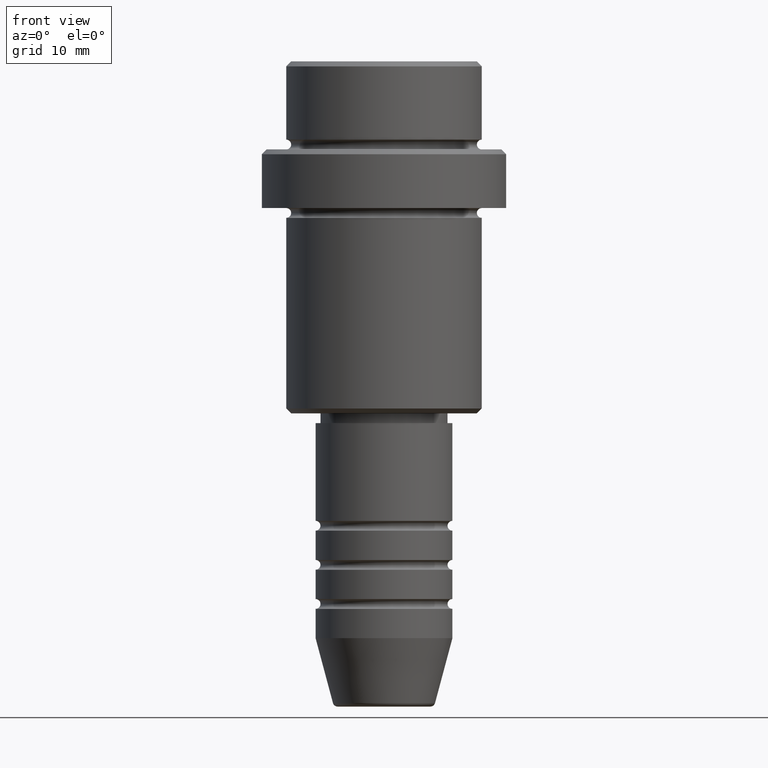
[diagram: clean part render]
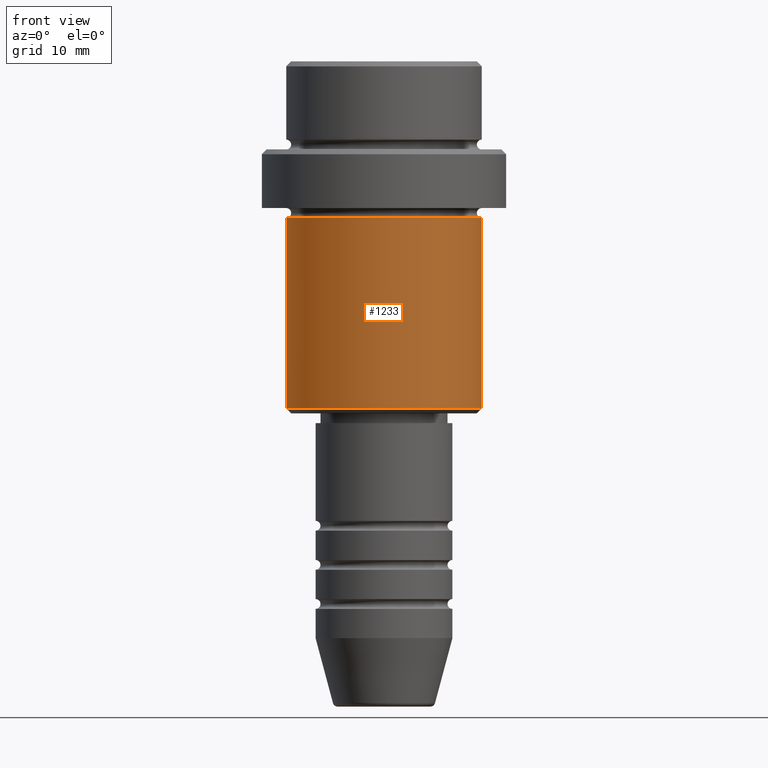
[diagram: same view with one face highlighted and labeled with its STEP entity id]
A machine part, front view. The second image highlights one B-rep face of the part: STEP entity #1233.
In plain terms, the highlighted cylindrical surface (partial cylindrical patch) has radius 10 mm, axis along (-0, -0, 1).
Its self-contained STEP definition (entity closure, byte-faithful):
#40 = CARTESIAN_POINT ( 'NONE',  ( -9.999999999999998224, 1.224646799147353059E-15, -16.00000000000000000 ) ) ;
#57 = CARTESIAN_POINT ( 'NONE',  ( 0.000000000000000000, 0.000000000000000000, -35.49999999999998579 ) ) ;
#74 = DIRECTION ( 'NONE',  ( -0.000000000000000000, -0.000000000000000000, 1.000000000000000000 ) ) ;
#168 = VERTEX_POINT ( 'NONE', #40 ) ;
#196 = CARTESIAN_POINT ( 'NONE',  ( 9.999999999999998224, 0.000000000000000000, 0.000000000000000000 ) ) ;
#207 = AXIS2_PLACEMENT_3D ( 'NONE', #266, #915, #476 ) ;
#266 = CARTESIAN_POINT ( 'NONE',  ( 0.000000000000000000, 0.000000000000000000, 0.000000000000000000 ) ) ;
#267 = VECTOR ( 'NONE', #1284, 1000.000000000000000 ) ;
#307 = EDGE_CURVE ( 'NONE', #1249, #168, #1301, .T. ) ;
#351 = VERTEX_POINT ( 'NONE', #1104 ) ;
#404 = AXIS2_PLACEMENT_3D ( 'NONE', #836, #74, #626 ) ;
#417 = CARTESIAN_POINT ( 'NONE',  ( -9.999999999999998224, 1.224646799147353059E-15, 0.000000000000000000 ) ) ;
#419 = DIRECTION ( 'NONE',  ( -1.000000000000000000, 0.000000000000000000, 0.000000000000000000 ) ) ;
#476 = DIRECTION ( 'NONE',  ( 1.000000000000000000, 0.000000000000000000, 0.000000000000000000 ) ) ;
#478 = VERTEX_POINT ( 'NONE', #777 ) ;
#492 = DIRECTION ( 'NONE',  ( -0.000000000000000000, -0.000000000000000000, 1.000000000000000000 ) ) ;
#510 = EDGE_LOOP ( 'NONE', ( #1108, #1143, #604, #744 ) ) ;
#589 = CIRCLE ( 'NONE', #1318, 9.999999999999998224 ) ;
#593 = CYLINDRICAL_SURFACE ( 'NONE', #207, 9.999999999999998224 ) ;
#604 = ORIENTED_EDGE ( 'NONE', *, *, #1400, .T. ) ;
#626 = DIRECTION ( 'NONE',  ( 1.000000000000000000, 0.000000000000000000, 0.000000000000000000 ) ) ;
#662 = VECTOR ( 'NONE', #1076, 1000.000000000000000 ) ;
#744 = ORIENTED_EDGE ( 'NONE', *, *, #1021, .F. ) ;
#777 = CARTESIAN_POINT ( 'NONE',  ( 9.999999999999998224, 0.000000000000000000, -35.49999999999998579 ) ) ;
#836 = CARTESIAN_POINT ( 'NONE',  ( 0.000000000000000000, 0.000000000000000000, -16.00000000000000000 ) ) ;
#915 = DIRECTION ( 'NONE',  ( -0.000000000000000000, -0.000000000000000000, 1.000000000000000000 ) ) ;
#939 = CARTESIAN_POINT ( 'NONE',  ( -9.999999999999998224, 1.224646799147353059E-15, -35.49999999999998579 ) ) ;
#957 = LINE ( 'NONE', #196, #662 ) ;
#1021 = EDGE_CURVE ( 'NONE', #168, #351, #1222, .T. ) ;
#1076 = DIRECTION ( 'NONE',  ( -0.000000000000000000, -0.000000000000000000, 1.000000000000000000 ) ) ;
#1104 = CARTESIAN_POINT ( 'NONE',  ( 9.999999999999998224, 0.000000000000000000, -16.00000000000000000 ) ) ;
#1108 = ORIENTED_EDGE ( 'NONE', *, *, #307, .F. ) ;
#1143 = ORIENTED_EDGE ( 'NONE', *, *, #1384, .T. ) ;
#1222 = CIRCLE ( 'NONE', #404, 9.999999999999998224 ) ;
#1233 = ADVANCED_FACE ( 'NONE', ( #1257 ), #593, .T. ) ;
#1249 = VERTEX_POINT ( 'NONE', #939 ) ;
#1257 = FACE_OUTER_BOUND ( 'NONE', #510, .T. ) ;
#1284 = DIRECTION ( 'NONE',  ( -0.000000000000000000, -0.000000000000000000, 1.000000000000000000 ) ) ;
#1301 = LINE ( 'NONE', #417, #267 ) ;
#1318 = AXIS2_PLACEMENT_3D ( 'NONE', #57, #492, #419 ) ;
#1384 = EDGE_CURVE ( 'NONE', #1249, #478, #589, .T. ) ;
#1400 = EDGE_CURVE ( 'NONE', #478, #351, #957, .T. ) ;